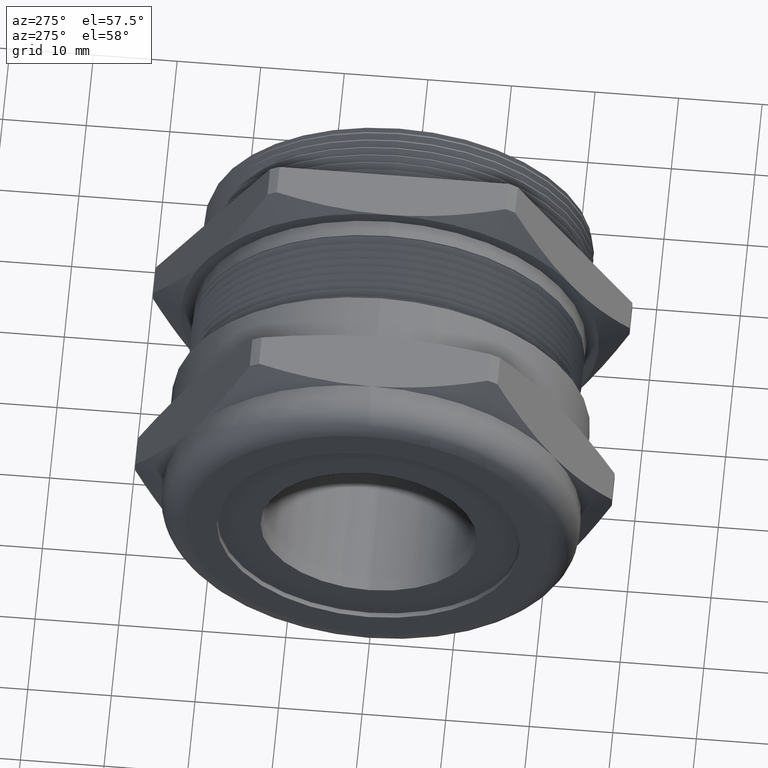
[diagram: clean part render]
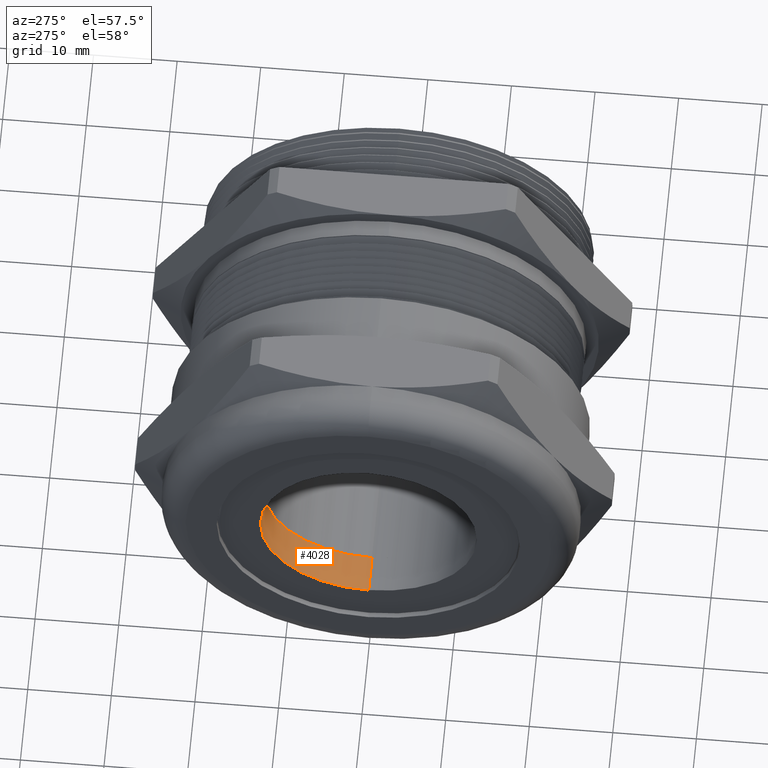
[diagram: same view with one face highlighted and labeled with its STEP entity id]
A machine part, auxiliary view. The second image highlights one B-rep face of the part: STEP entity #4028.
In plain terms, the highlighted cylindrical surface (partial cylindrical patch) has radius 12.954 mm, axis along (1, 0, 0).
Its self-contained STEP definition (entity closure, byte-faithful):
#556 = CARTESIAN_POINT ( 'NONE',  ( -0.6434999999999998500, 0.0000000000000000000, -0.5100000000000000100 ) ) ;
#562 = CARTESIAN_POINT ( 'NONE',  ( -0.6434999999999998500, 6.245698675651502300E-017, 0.5100000000000000100 ) ) ;
#1248 = DIRECTION ( 'NONE',  ( 0.0000000000000000000, 0.0000000000000000000, -1.000000000000000000 ) ) ;
#1249 = DIRECTION ( 'NONE',  ( 1.000000000000000000, 0.0000000000000000000, 0.0000000000000000000 ) ) ;
#1250 = CARTESIAN_POINT ( 'NONE',  ( -0.8249999999999998400, 0.0000000000000000000, 0.0000000000000000000 ) ) ;
#1251 = AXIS2_PLACEMENT_3D ( 'NONE', #1250, #1249, #1248 ) ;
#1252 = CIRCLE ( 'NONE', #1251, 0.5100000000000000100 ) ;
#1253 = DIRECTION ( 'NONE',  ( 0.0000000000000000000, 0.0000000000000000000, -1.000000000000000000 ) ) ;
#1254 = DIRECTION ( 'NONE',  ( 1.000000000000000000, 0.0000000000000000000, 0.0000000000000000000 ) ) ;
#1255 = CARTESIAN_POINT ( 'NONE',  ( -0.6434999999999998500, 0.0000000000000000000, 0.0000000000000000000 ) ) ;
#1256 = AXIS2_PLACEMENT_3D ( 'NONE', #1255, #1254, #1253 ) ;
#1257 = CIRCLE ( 'NONE', #1256, 0.5100000000000000100 ) ;
#1850 = CYLINDRICAL_SURFACE ( 'NONE', #1913, 0.5100000000000000100 ) ;
#1851 = FACE_OUTER_BOUND ( 'NONE', #4104, .T. ) ;
#1857 = CARTESIAN_POINT ( 'NONE',  ( 0.5452584728366800500, 0.0000000000000000000, 0.0000000000000000000 ) ) ;
#1908 = DIRECTION ( 'NONE',  ( 1.000000000000000000, 0.0000000000000000000, 0.0000000000000000000 ) ) ;
#1909 = VECTOR ( 'NONE', #1908, 39.37007874015748100 ) ;
#1910 = CARTESIAN_POINT ( 'NONE',  ( 0.5452584728366800500, 0.0000000000000000000, -0.5100000000000000100 ) ) ;
#1911 = DIRECTION ( 'NONE',  ( 0.0000000000000000000, 0.0000000000000000000, -1.000000000000000000 ) ) ;
#1912 = DIRECTION ( 'NONE',  ( 1.000000000000000000, 0.0000000000000000000, 0.0000000000000000000 ) ) ;
#1913 = AXIS2_PLACEMENT_3D ( 'NONE', #1857, #1912, #1911 ) ;
#1914 = LINE ( 'NONE', #1910, #1909 ) ;
#1915 = CARTESIAN_POINT ( 'NONE',  ( -0.8249999999999998400, 0.0000000000000000000, -0.5100000000000000100 ) ) ;
#1968 = DIRECTION ( 'NONE',  ( 1.000000000000000000, 0.0000000000000000000, 0.0000000000000000000 ) ) ;
#1969 = VECTOR ( 'NONE', #1968, 39.37007874015748100 ) ;
#1970 = CARTESIAN_POINT ( 'NONE',  ( 0.5452584728366800500, 6.245698675651502300E-017, 0.5100000000000000100 ) ) ;
#1971 = LINE ( 'NONE', #1970, #1969 ) ;
#1972 = CARTESIAN_POINT ( 'NONE',  ( -0.8249999999999998400, 6.245698675651502300E-017, 0.5100000000000000100 ) ) ;
#3053 = VERTEX_POINT ( 'NONE', #562 ) ;
#3056 = VERTEX_POINT ( 'NONE', #556 ) ;
#3618 = ORIENTED_EDGE ( 'NONE', *, *, #4033, .T. ) ;
#3620 = ORIENTED_EDGE ( 'NONE', *, *, #3668, .F. ) ;
#3664 = ORIENTED_EDGE ( 'NONE', *, *, #3667, .T. ) ;
#3667 = EDGE_CURVE ( 'NONE', #3056, #3053, #1257, .T. ) ;
#3668 = EDGE_CURVE ( 'NONE', #4071, #4073, #1252, .T. ) ;
#4028 = ADVANCED_FACE ( 'NONE', ( #1851 ), #1850, .F. ) ;
#4033 = EDGE_CURVE ( 'NONE', #4071, #3056, #1914, .T. ) ;
#4071 = VERTEX_POINT ( 'NONE', #1915 ) ;
#4073 = VERTEX_POINT ( 'NONE', #1972 ) ;
#4074 = EDGE_CURVE ( 'NONE', #4073, #3053, #1971, .T. ) ;
#4104 = EDGE_LOOP ( 'NONE', ( #4105, #3620, #3618, #3664 ) ) ;
#4105 = ORIENTED_EDGE ( 'NONE', *, *, #4074, .F. ) ;